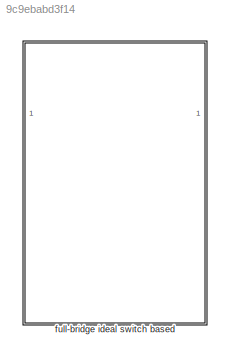
MODEL slx_9c9ebabd3f14
KIND library
CONFIG AbsTol = auto
CONFIG EnableMultiTasking = off
CONFIG FixedStep = auto
CONFIG MaxStep = auto
CONFIG MinStep = auto
CONFIG RelTol = 1e-3
CONFIG SampleTimeConstraint = Unconstrained
CONFIG SolverName = VariableStepAuto
CONFIG StartTime = 0.0
CONFIG StopTime = 10.0
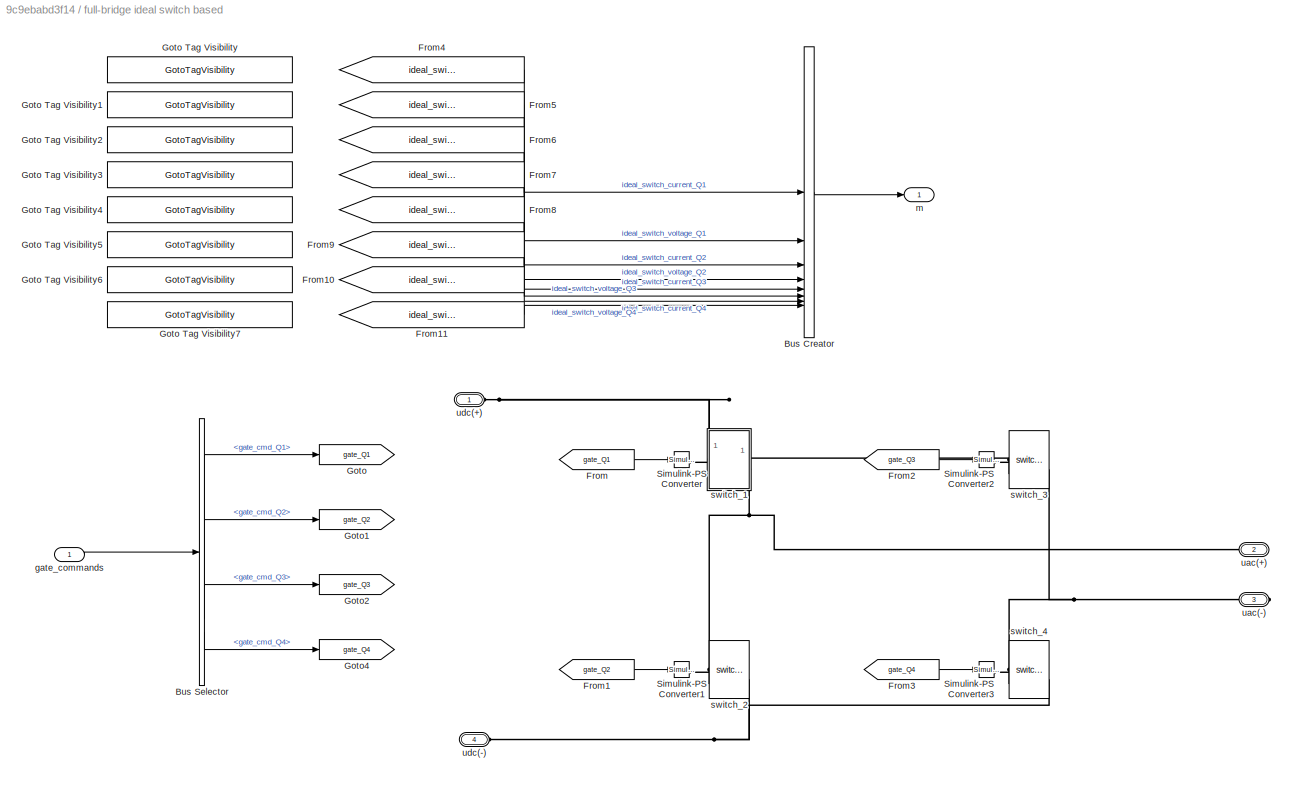
BLOCK [SubSystem] full-bridge ideal switch based
BLOCK [BusCreator] full-bridge ideal switch based/Bus Creator
  DisplayOption = bar
  InheritFromInputs = on
  Inputs = 8
BLOCK [BusSelector] full-bridge ideal switch based/Bus Selector
  OutputSignals = gate_cmd_Q1,gate_cmd_Q2,gate_cmd_Q3,gate_cmd_Q4
BLOCK [From] full-bridge ideal switch based/From
  GotoTag = gate_Q1
BLOCK [From] full-bridge ideal switch based/From1
  GotoTag = gate_Q2
BLOCK [From] full-bridge ideal switch based/From10
  GotoTag = ideal_switch_current_Q4
BLOCK [From] full-bridge ideal switch based/From11
  GotoTag = ideal_switch_voltage_Q4
BLOCK [From] full-bridge ideal switch based/From2
  GotoTag = gate_Q3
BLOCK [From] full-bridge ideal switch based/From3
  GotoTag = gate_Q4
BLOCK [From] full-bridge ideal switch based/From4
  GotoTag = ideal_switch_current_Q1
BLOCK [From] full-bridge ideal switch based/From5
  GotoTag = ideal_switch_voltage_Q1
BLOCK [From] full-bridge ideal switch based/From6
  GotoTag = ideal_switch_current_Q2
BLOCK [From] full-bridge ideal switch based/From7
  GotoTag = ideal_switch_voltage_Q2
BLOCK [From] full-bridge ideal switch based/From8
  GotoTag = ideal_switch_current_Q3
BLOCK [From] full-bridge ideal switch based/From9
  GotoTag = ideal_switch_voltage_Q3
BLOCK [Goto] full-bridge ideal switch based/Goto
  GotoTag = gate_Q1
BLOCK [GotoTagVisibility] full-bridge ideal switch based/Goto Tag Visibility
  GotoTag = ideal_switch_current_Q1
BLOCK [GotoTagVisibility] full-bridge ideal switch based/Goto Tag Visibility1
  GotoTag = ideal_switch_voltage_Q1
BLOCK [GotoTagVisibility] full-bridge ideal switch based/Goto Tag Visibility2
  GotoTag = ideal_switch_current_Q2
BLOCK [GotoTagVisibility] full-bridge ideal switch based/Goto Tag Visibility3
  GotoTag = ideal_switch_voltage_Q2
BLOCK [GotoTagVisibility] full-bridge ideal switch based/Goto Tag Visibility4
  GotoTag = ideal_switch_current_Q3
BLOCK [GotoTagVisibility] full-bridge ideal switch based/Goto Tag Visibility5
  GotoTag = ideal_switch_voltage_Q3
BLOCK [GotoTagVisibility] full-bridge ideal switch based/Goto Tag Visibility6
  GotoTag = ideal_switch_current_Q4
BLOCK [GotoTagVisibility] full-bridge ideal switch based/Goto Tag Visibility7
  GotoTag = ideal_switch_voltage_Q4
BLOCK [Goto] full-bridge ideal switch based/Goto1
  GotoTag = gate_Q2
BLOCK [Goto] full-bridge ideal switch based/Goto2
  GotoTag = gate_Q3
BLOCK [Goto] full-bridge ideal switch based/Goto4
  GotoTag = gate_Q4
BLOCK [Reference] full-bridge ideal switch based/Simulink-PS Converter  REF=nesl_utility/Simulink-PS
Converter
  SourceBlock = nesl_utility/Simulink-PS\nConverter
  SourceType = Simulink-PS\nConverter
BLOCK [Reference] full-bridge ideal switch based/Simulink-PS Converter1  REF=nesl_utility/Simulink-PS
Converter
  SourceBlock = nesl_utility/Simulink-PS\nConverter
  SourceType = Simulink-PS\nConverter
BLOCK [Reference] full-bridge ideal switch based/Simulink-PS Converter2  REF=nesl_utility/Simulink-PS
Converter
  SourceBlock = nesl_utility/Simulink-PS\nConverter
  SourceType = Simulink-PS\nConverter
BLOCK [Reference] full-bridge ideal switch based/Simulink-PS Converter3  REF=nesl_utility/Simulink-PS
Converter
  SourceBlock = nesl_utility/Simulink-PS\nConverter
  SourceType = Simulink-PS\nConverter
BLOCK [Inport] full-bridge ideal switch based/gate_commands
BLOCK [Outport] full-bridge ideal switch based/m
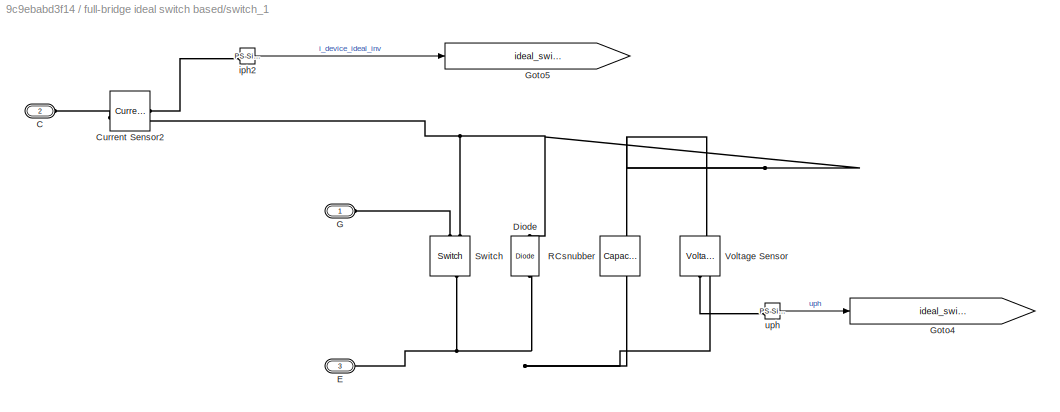
BLOCK [SubSystem] full-bridge ideal switch based/switch_1
  NameLocation = right
  PortSchema = {"entries":[{"content":{"sides":[{"content":{"connectorIds":["LConn1"]},"type":"ConnectorPlacement.EquallySpacedRectSide","uuid":"9277da8d-d460-43e6-8478-dd662f15d226"},{"content":{"connectorIds":[],"side":"RIGHT"},"type":"ConnectorPlacement.EquallySpacedRectSide","uuid":"a7ece396-f1d9-4f4f-a05b-db1fc65d6e1d"},{"content":{"connectorIds":["LConn2"],"side":"TOP"},"type":"ConnectorPlacement.EquallySp...<+397ch>
BLOCK [PMIOPort] full-bridge ideal switch based/switch_1/C
  NameLocation = top
  Port = 2
  Side = Left
BLOCK [Reference] full-bridge ideal switch based/switch_1/Current Sensor2  REF=fl_lib/Electrical/Electrical Sensors/Current Sensor
  SourceBlock = fl_lib/Electrical/Electrical Sensors/Current Sensor
  SourceType = Current Sensor
BLOCK [Reference] full-bridge ideal switch based/switch_1/Diode  REF=fl_lib/Electrical/Electrical Elements/Diode
  NameLocation = right
  SourceBlock = fl_lib/Electrical/Electrical Elements/Diode
  SourceType = Diode
BLOCK [PMIOPort] full-bridge ideal switch based/switch_1/E
  NameLocation = top
  Port = 3
  Side = Right
BLOCK [PMIOPort] full-bridge ideal switch based/switch_1/G
  NameLocation = top
  Side = Left
BLOCK [Goto] full-bridge ideal switch based/switch_1/Goto4
  GotoTag = ideal_switch_voltage_Q1
  TagVisibility = scoped
BLOCK [Goto] full-bridge ideal switch based/switch_1/Goto5
  GotoTag = ideal_switch_current_Q1
  TagVisibility = scoped
BLOCK [Reference] full-bridge ideal switch based/switch_1/RCsnubber  REF=fl_lib/Electrical/Electrical Elements/Capacitor
  NameLocation = left
  SourceBlock = fl_lib/Electrical/Electrical Elements/Capacitor
  SourceType = Capacitor
BLOCK [Reference] full-bridge ideal switch based/switch_1/Switch  REF=fl_lib/Electrical/Electrical Elements/Switch
  NameLocation = left
  SourceBlock = fl_lib/Electrical/Electrical Elements/Switch
  SourceType = Switch
BLOCK [Reference] full-bridge ideal switch based/switch_1/Voltage Sensor  REF=fl_lib/Electrical/Electrical Sensors/Voltage Sensor
  NameLocation = right
  SourceBlock = fl_lib/Electrical/Electrical Sensors/Voltage Sensor
  SourceType = Voltage Sensor
BLOCK [Reference] full-bridge ideal switch based/switch_1/iph2  REF=nesl_utility/PS-Simulink
Converter
  SourceBlock = nesl_utility/PS-Simulink\nConverter
  SourceType = PS-Simulink\nConverter
BLOCK [Reference] full-bridge ideal switch based/switch_1/uph  REF=nesl_utility/PS-Simulink
Converter
  SourceBlock = nesl_utility/PS-Simulink\nConverter
  SourceType = PS-Simulink\nConverter
BLOCK [Reference] full-bridge ideal switch based/switch_2  REF=$bdroot/full-bridge ideal switch based/switch_1
  NameLocation = right
  SourceBlock = $bdroot/full-bridge ideal switch based/switch_1
  SourceType = SubSystem
BLOCK [Reference] full-bridge ideal switch based/switch_3  REF=$bdroot/full-bridge ideal switch based/switch_1
  NameLocation = right
  SourceBlock = $bdroot/full-bridge ideal switch based/switch_1
  SourceType = SubSystem
BLOCK [Reference] full-bridge ideal switch based/switch_4  REF=$bdroot/full-bridge ideal switch based/switch_1
  NameLocation = right
  SourceBlock = $bdroot/full-bridge ideal switch based/switch_1
  SourceType = SubSystem
BLOCK [PMIOPort] full-bridge ideal switch based/uac(+)
  Port = 2
  Side = Right
BLOCK [PMIOPort] full-bridge ideal switch based/uac(-)
  Port = 3
  Side = Right
BLOCK [PMIOPort] full-bridge ideal switch based/udc(+)
  Side = Left
BLOCK [PMIOPort] full-bridge ideal switch based/udc(-)
  Port = 4
  Side = Left
LINE full-bridge ideal switch based/Bus Creator:1 -> full-bridge ideal switch based/m:1
LINE full-bridge ideal switch based/Bus Selector:1 -> full-bridge ideal switch based/Goto:1
LINE full-bridge ideal switch based/Bus Selector:2 -> full-bridge ideal switch based/Goto1:1
LINE full-bridge ideal switch based/Bus Selector:3 -> full-bridge ideal switch based/Goto2:1
LINE full-bridge ideal switch based/Bus Selector:4 -> full-bridge ideal switch based/Goto4:1
LINE full-bridge ideal switch based/From10:1 -> full-bridge ideal switch based/Bus Creator:7
LINE full-bridge ideal switch based/From11:1 -> full-bridge ideal switch based/Bus Creator:8
LINE full-bridge ideal switch based/From1:1 -> full-bridge ideal switch based/Simulink-PS Converter1:1
LINE full-bridge ideal switch based/From2:1 -> full-bridge ideal switch based/Simulink-PS Converter2:1
LINE full-bridge ideal switch based/From3:1 -> full-bridge ideal switch based/Simulink-PS Converter3:1
LINE full-bridge ideal switch based/From4:1 -> full-bridge ideal switch based/Bus Creator:1
LINE full-bridge ideal switch based/From5:1 -> full-bridge ideal switch based/Bus Creator:2
LINE full-bridge ideal switch based/From6:1 -> full-bridge ideal switch based/Bus Creator:3
LINE full-bridge ideal switch based/From7:1 -> full-bridge ideal switch based/Bus Creator:4
LINE full-bridge ideal switch based/From8:1 -> full-bridge ideal switch based/Bus Creator:5
LINE full-bridge ideal switch based/From9:1 -> full-bridge ideal switch based/Bus Creator:6
LINE full-bridge ideal switch based/From:1 -> full-bridge ideal switch based/Simulink-PS Converter:1
LINE full-bridge ideal switch based/gate_commands:1 -> full-bridge ideal switch based/Bus Selector:1
LINE full-bridge ideal switch based/switch_1/iph2:1 -> full-bridge ideal switch based/switch_1/Goto5:1
LINE full-bridge ideal switch based/switch_1/uph:1 -> full-bridge ideal switch based/switch_1/Goto4:1
PLINE full-bridge ideal switch based/Simulink-PS Converter1:RConn1 -- full-bridge ideal switch based/switch_2:LConn1
PLINE full-bridge ideal switch based/Simulink-PS Converter2:RConn1 -- full-bridge ideal switch based/switch_3:LConn1
PLINE full-bridge ideal switch based/Simulink-PS Converter3:RConn1 -- full-bridge ideal switch based/switch_4:LConn1
PLINE full-bridge ideal switch based/Simulink-PS Converter:RConn1 -- full-bridge ideal switch based/switch_1:LConn1
PLINE full-bridge ideal switch based/switch_1/C:RConn1 -- full-bridge ideal switch based/switch_1/Current Sensor2:LConn1
PLINE full-bridge ideal switch based/switch_1/Current Sensor2:RConn1 -- full-bridge ideal switch based/switch_1/iph2:LConn1
PNET net1: full-bridge ideal switch based/switch_1/Current Sensor2:RConn2 -- full-bridge ideal switch based/switch_1/Diode:RConn1 -- full-bridge ideal switch based/switch_1/RCsnubber:LConn1 -- full-bridge ideal switch based/switch_1/Switch:RConn2 -- full-bridge ideal switch based/switch_1/Voltage Sensor:LConn1
PNET net2: full-bridge ideal switch based/switch_1/Diode:LConn1 -- full-bridge ideal switch based/switch_1/E:RConn1 -- full-bridge ideal switch based/switch_1/RCsnubber:RConn1 -- full-bridge ideal switch based/switch_1/Switch:LConn1 -- full-bridge ideal switch based/switch_1/Voltage Sensor:RConn2
PLINE full-bridge ideal switch based/switch_1/G:RConn1 -- full-bridge ideal switch based/switch_1/Switch:RConn1
PLINE full-bridge ideal switch based/switch_1/Voltage Sensor:RConn1 -- full-bridge ideal switch based/switch_1/uph:LConn1
PNET net3: full-bridge ideal switch based/switch_1:LConn2 -- full-bridge ideal switch based/switch_3:LConn2 -- full-bridge ideal switch based/udc(+):RConn1
PNET net4: full-bridge ideal switch based/switch_1:RConn1 -- full-bridge ideal switch based/switch_2:LConn2 -- full-bridge ideal switch based/uac(+):RConn1
PNET net5: full-bridge ideal switch based/switch_2:RConn1 -- full-bridge ideal switch based/switch_4:RConn1 -- full-bridge ideal switch based/udc(-):RConn1
PNET net6: full-bridge ideal switch based/switch_3:RConn1 -- full-bridge ideal switch based/switch_4:LConn2 -- full-bridge ideal switch based/uac(-):RConn1
note: PNET lines group multi-terminal physical nets as a canonical sorted terminal list (undirected conserving connections); 2-terminal nets keep the pairwise PLINE form
